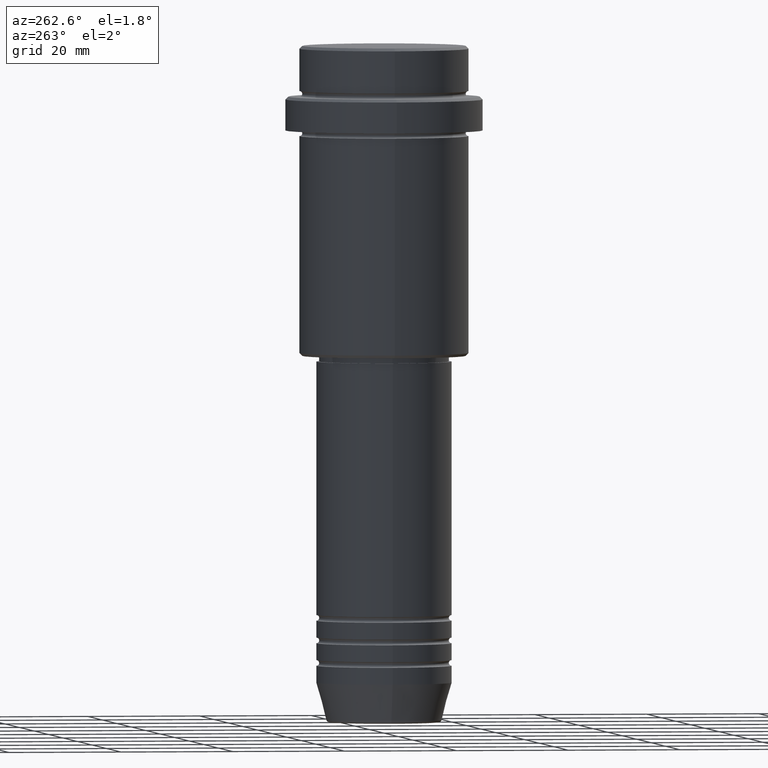
[diagram: clean part render]
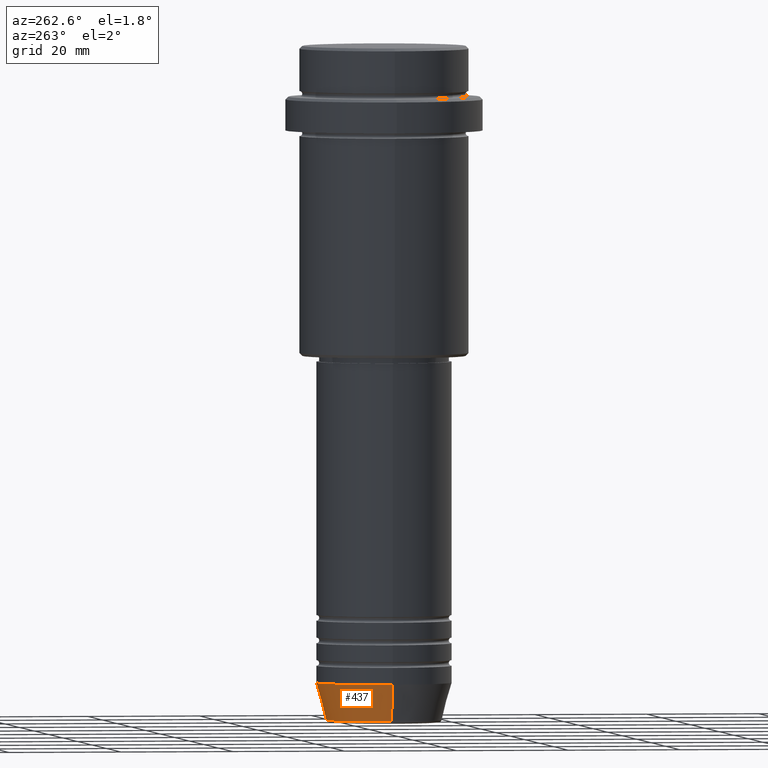
[diagram: same view with one face highlighted and labeled with its STEP entity id]
A machine part, auxiliary view. The second image highlights one B-rep face of the part: STEP entity #437.
In plain terms, the highlighted conical surface has half-angle 15 deg.
Its self-contained STEP definition (entity closure, byte-faithful):
#1 = ORIENTED_EDGE ( 'NONE', *, *, #600, .F. ) ;
#27 = LINE ( 'NONE', #751, #104 ) ;
#46 = DIRECTION ( 'NONE',  ( 0.2588190451025213501, 0.000000000000000000, 0.9659258262890680902 ) ) ;
#53 = CARTESIAN_POINT ( 'NONE',  ( 10.22365507213718949, 0.000000000000000000, -119.6294095225512564 ) ) ;
#62 = VERTEX_POINT ( 'NONE', #1180 ) ;
#101 = CONICAL_SURFACE ( 'NONE', #1085, 12.00000000000000000, 0.2617993877991500740 ) ;
#104 = VECTOR ( 'NONE', #46, 1000.000000000000000 ) ;
#108 = DIRECTION ( 'NONE',  ( 1.000000000000000000, 0.000000000000000000, 0.000000000000000000 ) ) ;
#230 = CARTESIAN_POINT ( 'NONE',  ( 0.000000000000000000, 0.000000000000000000, -113.0000000000000000 ) ) ;
#258 = DIRECTION ( 'NONE',  ( -0.000000000000000000, -0.000000000000000000, 1.000000000000000000 ) ) ;
#275 = VECTOR ( 'NONE', #448, 1000.000000000000000 ) ;
#319 = AXIS2_PLACEMENT_3D ( 'NONE', #684, #258, #943 ) ;
#322 = CARTESIAN_POINT ( 'NONE',  ( 12.00000000000000000, 0.000000000000000000, -113.0000000000000000 ) ) ;
#407 = ORIENTED_EDGE ( 'NONE', *, *, #736, .T. ) ;
#437 = ADVANCED_FACE ( 'NONE', ( #1228 ), #101, .T. ) ;
#448 = DIRECTION ( 'NONE',  ( -0.2588190451025213501, 3.169619151431772337E-17, 0.9659258262890680902 ) ) ;
#511 = VERTEX_POINT ( 'NONE', #962 ) ;
#555 = CIRCLE ( 'NONE', #319, 12.00000000000000000 ) ;
#600 = EDGE_CURVE ( 'NONE', #754, #62, #555, .T. ) ;
#684 = CARTESIAN_POINT ( 'NONE',  ( 0.000000000000000000, 0.000000000000000000, -113.0000000000000000 ) ) ;
#703 = EDGE_CURVE ( 'NONE', #862, #511, #1383, .T. ) ;
#736 = EDGE_CURVE ( 'NONE', #511, #62, #1006, .T. ) ;
#751 = CARTESIAN_POINT ( 'NONE',  ( 12.00000000000000000, 0.000000000000000000, -113.0000000000000000 ) ) ;
#754 = VERTEX_POINT ( 'NONE', #322 ) ;
#795 = AXIS2_PLACEMENT_3D ( 'NONE', #896, #1100, #1093 ) ;
#797 = CARTESIAN_POINT ( 'NONE',  ( -12.00000000000000000, 1.469576158976823947E-15, -113.0000000000000000 ) ) ;
#859 = ORIENTED_EDGE ( 'NONE', *, *, #703, .T. ) ;
#862 = VERTEX_POINT ( 'NONE', #53 ) ;
#896 = CARTESIAN_POINT ( 'NONE',  ( 0.000000000000000000, 0.000000000000000000, -119.6294095225512564 ) ) ;
#943 = DIRECTION ( 'NONE',  ( 1.000000000000000000, 0.000000000000000000, 0.000000000000000000 ) ) ;
#945 = ORIENTED_EDGE ( 'NONE', *, *, #988, .F. ) ;
#962 = CARTESIAN_POINT ( 'NONE',  ( -10.22365507213718949, 1.360806402472382744E-15, -119.6294095225512564 ) ) ;
#988 = EDGE_CURVE ( 'NONE', #862, #754, #27, .T. ) ;
#1006 = LINE ( 'NONE', #797, #275 ) ;
#1052 = EDGE_LOOP ( 'NONE', ( #859, #407, #1, #945 ) ) ;
#1085 = AXIS2_PLACEMENT_3D ( 'NONE', #230, #1211, #108 ) ;
#1093 = DIRECTION ( 'NONE',  ( 1.000000000000000000, 0.000000000000000000, 0.000000000000000000 ) ) ;
#1100 = DIRECTION ( 'NONE',  ( -0.000000000000000000, -0.000000000000000000, 1.000000000000000000 ) ) ;
#1180 = CARTESIAN_POINT ( 'NONE',  ( -12.00000000000000000, 1.469576158976823947E-15, -113.0000000000000000 ) ) ;
#1211 = DIRECTION ( 'NONE',  ( -0.000000000000000000, -0.000000000000000000, 1.000000000000000000 ) ) ;
#1228 = FACE_OUTER_BOUND ( 'NONE', #1052, .T. ) ;
#1383 = CIRCLE ( 'NONE', #795, 10.22365507213718949 ) ;